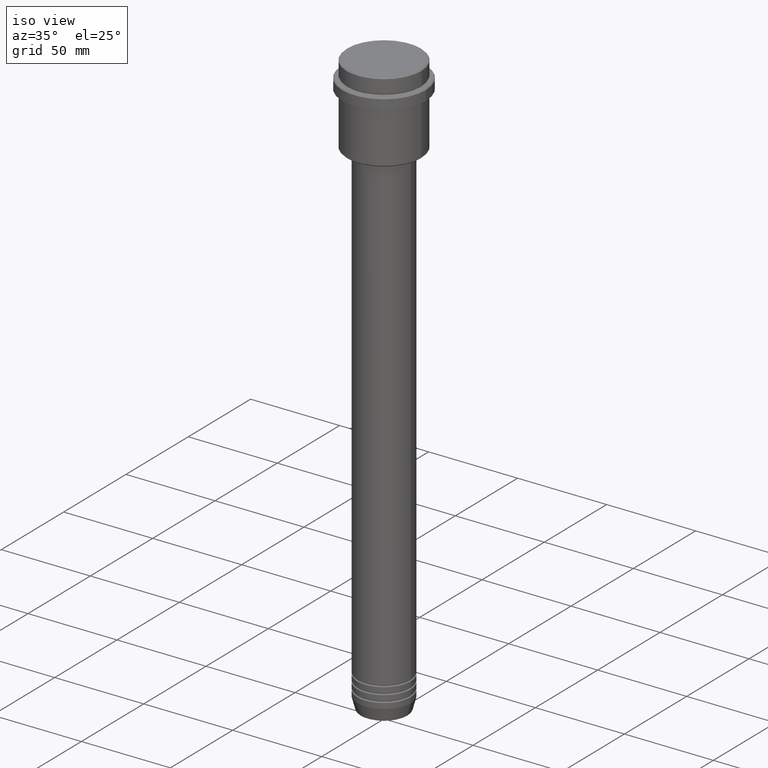
[diagram: clean part render]
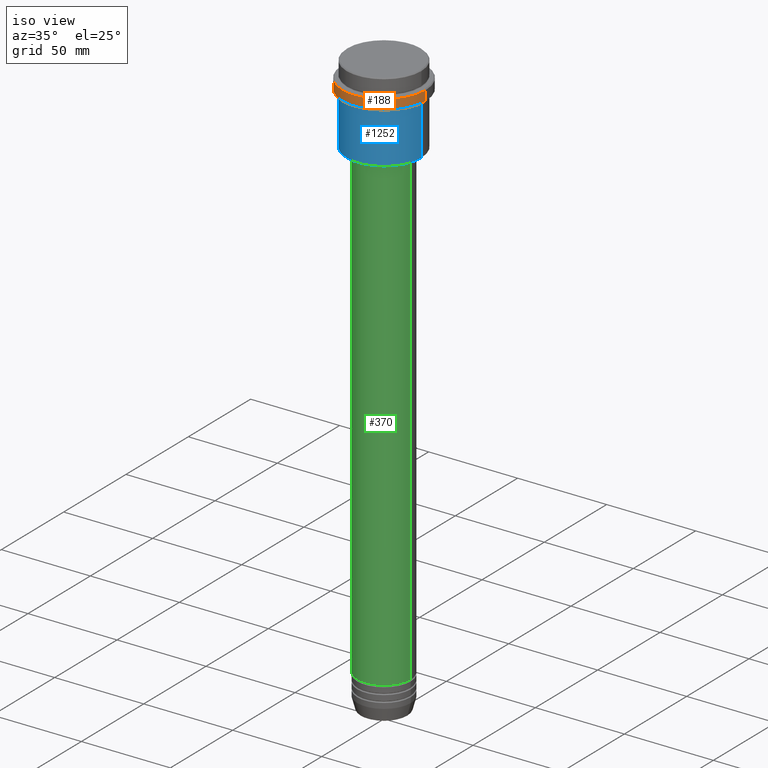
[diagram: same view with three faces highlighted in distinct colors, each labeled with its STEP entity id]
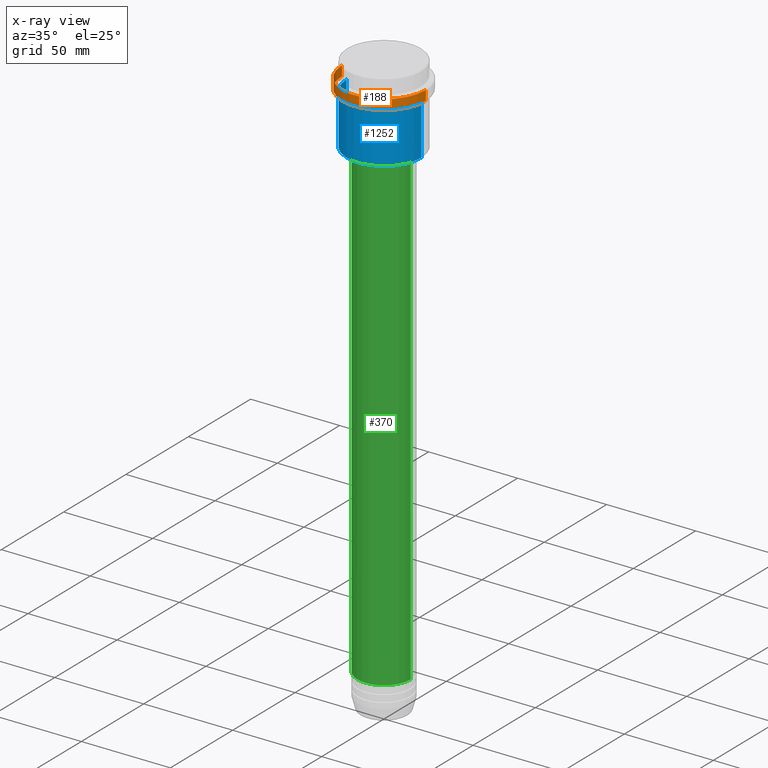
[diagram: x-ray of the same camera — body ghosted, the three highlighted faces saturated]
A machine part, iso view with three faces highlighted in distinct colors.
The next image is the same camera in x-ray (body ghosted, the three faces saturated) — at least one of them is partly hidden behind the body in this view.
Their STEP definitions:

[orange] entity #188 — the highlighted cylindrical surface (partial cylindrical patch) has radius 23.5 mm, axis along (-0, -0, 1).
#115 = CARTESIAN_POINT ( 'NONE',  ( 0.000000000000000000, 0.000000000000000000, -9.500000000000000000 ) ) ;
#143 = ORIENTED_EDGE ( 'NONE', *, *, #357, .F. ) ;
#164 = CARTESIAN_POINT ( 'NONE',  ( 0.000000000000000000, 0.000000000000000000, -15.00000000000000000 ) ) ;
#188 = ADVANCED_FACE ( 'NONE', ( #670 ), #1412, .T. ) ;
#223 = DIRECTION ( 'NONE',  ( -0.000000000000000000, -0.000000000000000000, 1.000000000000000000 ) ) ;
#277 = CARTESIAN_POINT ( 'NONE',  ( -23.50000000000000000, 2.877919977996280320E-15, 0.000000000000000000 ) ) ;
#283 = AXIS2_PLACEMENT_3D ( 'NONE', #868, #223, #320 ) ;
#320 = DIRECTION ( 'NONE',  ( 1.000000000000000000, 0.000000000000000000, 0.000000000000000000 ) ) ;
#337 = DIRECTION ( 'NONE',  ( 1.000000000000000000, 0.000000000000000000, 0.000000000000000000 ) ) ;
#355 = CARTESIAN_POINT ( 'NONE',  ( 23.50000000000000000, 0.000000000000000000, -9.500000000000000000 ) ) ;
#357 = EDGE_CURVE ( 'NONE', #1160, #466, #682, .T. ) ;
#396 = DIRECTION ( 'NONE',  ( 1.000000000000000000, 0.000000000000000000, 0.000000000000000000 ) ) ;
#466 = VERTEX_POINT ( 'NONE', #753 ) ;
#487 = DIRECTION ( 'NONE',  ( -0.000000000000000000, -0.000000000000000000, 1.000000000000000000 ) ) ;
#526 = VERTEX_POINT ( 'NONE', #1052 ) ;
#554 = AXIS2_PLACEMENT_3D ( 'NONE', #164, #948, #396 ) ;
#670 = FACE_OUTER_BOUND ( 'NONE', #974, .T. ) ;
#682 = LINE ( 'NONE', #277, #1067 ) ;
#753 = CARTESIAN_POINT ( 'NONE',  ( -23.50000000000000000, 2.877919977996280320E-15, -9.500000000000000000 ) ) ;
#770 = LINE ( 'NONE', #1107, #1356 ) ;
#777 = ORIENTED_EDGE ( 'NONE', *, *, #826, .T. ) ;
#802 = CARTESIAN_POINT ( 'NONE',  ( -23.50000000000000711, 2.877919977996281109E-15, -15.00000000000000000 ) ) ;
#820 = EDGE_CURVE ( 'NONE', #1143, #466, #1265, .T. ) ;
#826 = EDGE_CURVE ( 'NONE', #526, #1143, #770, .T. ) ;
#868 = CARTESIAN_POINT ( 'NONE',  ( 0.000000000000000000, 0.000000000000000000, 0.000000000000000000 ) ) ;
#900 = DIRECTION ( 'NONE',  ( 0.000000000000000000, 0.000000000000000000, -1.000000000000000000 ) ) ;
#936 = CIRCLE ( 'NONE', #554, 23.50000000000000355 ) ;
#948 = DIRECTION ( 'NONE',  ( -0.000000000000000000, -0.000000000000000000, 1.000000000000000000 ) ) ;
#954 = AXIS2_PLACEMENT_3D ( 'NONE', #115, #900, #337 ) ;
#974 = EDGE_LOOP ( 'NONE', ( #143, #1283, #777, #1248 ) ) ;
#986 = DIRECTION ( 'NONE',  ( -0.000000000000000000, -0.000000000000000000, 1.000000000000000000 ) ) ;
#1052 = CARTESIAN_POINT ( 'NONE',  ( 23.50000000000000355, 0.000000000000000000, -15.00000000000000000 ) ) ;
#1067 = VECTOR ( 'NONE', #487, 1000.000000000000000 ) ;
#1107 = CARTESIAN_POINT ( 'NONE',  ( 23.50000000000000000, 0.000000000000000000, 0.000000000000000000 ) ) ;
#1143 = VERTEX_POINT ( 'NONE', #355 ) ;
#1160 = VERTEX_POINT ( 'NONE', #802 ) ;
#1208 = EDGE_CURVE ( 'NONE', #1160, #526, #936, .T. ) ;
#1248 = ORIENTED_EDGE ( 'NONE', *, *, #820, .T. ) ;
#1265 = CIRCLE ( 'NONE', #954, 23.50000000000000000 ) ;
#1283 = ORIENTED_EDGE ( 'NONE', *, *, #1208, .T. ) ;
#1356 = VECTOR ( 'NONE', #986, 1000.000000000000000 ) ;
#1412 = CYLINDRICAL_SURFACE ( 'NONE', #283, 23.50000000000000000 ) ;

[blue] entity #1252 — the highlighted cylindrical surface (partial cylindrical patch) has radius 21 mm, axis along (-0, -0, 1).
#37 = VERTEX_POINT ( 'NONE', #1254 ) ;
#42 = LINE ( 'NONE', #1152, #812 ) ;
#50 = VERTEX_POINT ( 'NONE', #67 ) ;
#57 = CIRCLE ( 'NONE', #1400, 21.00000000000000000 ) ;
#67 = CARTESIAN_POINT ( 'NONE',  ( -21.00000000000000000, 2.571758278209441661E-15, -44.50000000000001421 ) ) ;
#96 = ORIENTED_EDGE ( 'NONE', *, *, #197, .F. ) ;
#106 = AXIS2_PLACEMENT_3D ( 'NONE', #920, #139, #268 ) ;
#139 = DIRECTION ( 'NONE',  ( -0.000000000000000000, -0.000000000000000000, 1.000000000000000000 ) ) ;
#170 = ORIENTED_EDGE ( 'NONE', *, *, #939, .F. ) ;
#184 = VERTEX_POINT ( 'NONE', #641 ) ;
#197 = EDGE_CURVE ( 'NONE', #50, #37, #1195, .T. ) ;
#239 = CIRCLE ( 'NONE', #106, 21.00000000000000000 ) ;
#268 = DIRECTION ( 'NONE',  ( -1.000000000000000000, 0.000000000000000000, 0.000000000000000000 ) ) ;
#287 = DIRECTION ( 'NONE',  ( 1.000000000000000000, 0.000000000000000000, 0.000000000000000000 ) ) ;
#313 = VERTEX_POINT ( 'NONE', #798 ) ;
#366 = ORIENTED_EDGE ( 'NONE', *, *, #1085, .T. ) ;
#372 = CARTESIAN_POINT ( 'NONE',  ( 0.000000000000000000, 0.000000000000000000, -16.00000000000000355 ) ) ;
#470 = DIRECTION ( 'NONE',  ( -0.000000000000000000, -0.000000000000000000, 1.000000000000000000 ) ) ;
#512 = DIRECTION ( 'NONE',  ( 1.000000000000000000, 0.000000000000000000, 0.000000000000000000 ) ) ;
#534 = AXIS2_PLACEMENT_3D ( 'NONE', #1148, #840, #287 ) ;
#561 = CARTESIAN_POINT ( 'NONE',  ( -21.00000000000000000, 2.571758278209441661E-15, 0.000000000000000000 ) ) ;
#641 = CARTESIAN_POINT ( 'NONE',  ( 21.00000000000000000, 0.000000000000000000, -16.00000000000000355 ) ) ;
#798 = CARTESIAN_POINT ( 'NONE',  ( 21.00000000000000000, 0.000000000000000000, -44.50000000000001421 ) ) ;
#812 = VECTOR ( 'NONE', #470, 1000.000000000000000 ) ;
#823 = EDGE_LOOP ( 'NONE', ( #96, #366, #984, #170 ) ) ;
#840 = DIRECTION ( 'NONE',  ( -0.000000000000000000, -0.000000000000000000, 1.000000000000000000 ) ) ;
#901 = VECTOR ( 'NONE', #1206, 1000.000000000000000 ) ;
#920 = CARTESIAN_POINT ( 'NONE',  ( 0.000000000000000000, 0.000000000000000000, -44.50000000000001421 ) ) ;
#939 = EDGE_CURVE ( 'NONE', #37, #184, #57, .T. ) ;
#972 = EDGE_CURVE ( 'NONE', #313, #184, #42, .T. ) ;
#984 = ORIENTED_EDGE ( 'NONE', *, *, #972, .T. ) ;
#1042 = DIRECTION ( 'NONE',  ( -0.000000000000000000, -0.000000000000000000, 1.000000000000000000 ) ) ;
#1051 = FACE_OUTER_BOUND ( 'NONE', #823, .T. ) ;
#1085 = EDGE_CURVE ( 'NONE', #50, #313, #239, .T. ) ;
#1148 = CARTESIAN_POINT ( 'NONE',  ( 0.000000000000000000, 0.000000000000000000, 0.000000000000000000 ) ) ;
#1152 = CARTESIAN_POINT ( 'NONE',  ( 21.00000000000000000, 0.000000000000000000, 0.000000000000000000 ) ) ;
#1195 = LINE ( 'NONE', #561, #901 ) ;
#1206 = DIRECTION ( 'NONE',  ( -0.000000000000000000, -0.000000000000000000, 1.000000000000000000 ) ) ;
#1252 = ADVANCED_FACE ( 'NONE', ( #1051 ), #1370, .T. ) ;
#1254 = CARTESIAN_POINT ( 'NONE',  ( -21.00000000000000000, 2.571758278209441661E-15, -16.00000000000000355 ) ) ;
#1370 = CYLINDRICAL_SURFACE ( 'NONE', #534, 21.00000000000000000 ) ;
#1400 = AXIS2_PLACEMENT_3D ( 'NONE', #372, #1042, #512 ) ;

[green] entity #370 — the highlighted cylindrical surface (edge-blend (fillet) strip) has radius 15 mm, axis along (-0, -0, 1).
#3 = AXIS2_PLACEMENT_3D ( 'NONE', #24, #451, #906 ) ;
#24 = CARTESIAN_POINT ( 'NONE',  ( 0.000000000000000000, 0.000000000000000000, 0.000000000000000000 ) ) ;
#39 = CARTESIAN_POINT ( 'NONE',  ( -15.00000000000000000, 1.836970198721029589E-15, -46.00000000000001421 ) ) ;
#46 = VERTEX_POINT ( 'NONE', #1368 ) ;
#62 = CARTESIAN_POINT ( 'NONE',  ( 0.000000000000000000, 0.000000000000000000, -46.00000000000001421 ) ) ;
#66 = EDGE_CURVE ( 'NONE', #280, #46, #1060, .T. ) ;
#86 = EDGE_CURVE ( 'NONE', #642, #280, #1396, .T. ) ;
#135 = FACE_OUTER_BOUND ( 'NONE', #964, .T. ) ;
#280 = VERTEX_POINT ( 'NONE', #574 ) ;
#311 = DIRECTION ( 'NONE',  ( 1.000000000000000000, 0.000000000000000000, 0.000000000000000000 ) ) ;
#329 = VECTOR ( 'NONE', #1035, 1000.000000000000000 ) ;
#362 = AXIS2_PLACEMENT_3D ( 'NONE', #62, #1364, #736 ) ;
#370 = ADVANCED_FACE ( 'NONE', ( #135 ), #1014, .T. ) ;
#399 = DIRECTION ( 'NONE',  ( -0.000000000000000000, -0.000000000000000000, 1.000000000000000000 ) ) ;
#412 = EDGE_CURVE ( 'NONE', #1167, #46, #997, .T. ) ;
#451 = DIRECTION ( 'NONE',  ( -0.000000000000000000, -0.000000000000000000, 1.000000000000000000 ) ) ;
#481 = ORIENTED_EDGE ( 'NONE', *, *, #412, .F. ) ;
#574 = CARTESIAN_POINT ( 'NONE',  ( 15.00000000000000000, 0.000000000000000000, -310.9999999999998863 ) ) ;
#595 = CARTESIAN_POINT ( 'NONE',  ( -15.00000000000000000, 1.836970198721029589E-15, 0.000000000000000000 ) ) ;
#642 = VERTEX_POINT ( 'NONE', #1325 ) ;
#734 = ORIENTED_EDGE ( 'NONE', *, *, #86, .T. ) ;
#736 = DIRECTION ( 'NONE',  ( 1.000000000000000000, 0.000000000000000000, 0.000000000000000000 ) ) ;
#744 = CARTESIAN_POINT ( 'NONE',  ( 15.00000000000000000, 0.000000000000000000, 0.000000000000000000 ) ) ;
#786 = AXIS2_PLACEMENT_3D ( 'NONE', #834, #1290, #311 ) ;
#834 = CARTESIAN_POINT ( 'NONE',  ( 0.000000000000000000, 0.000000000000000000, -310.9999999999998863 ) ) ;
#844 = ORIENTED_EDGE ( 'NONE', *, *, #66, .T. ) ;
#849 = LINE ( 'NONE', #595, #329 ) ;
#906 = DIRECTION ( 'NONE',  ( 1.000000000000000000, 0.000000000000000000, 0.000000000000000000 ) ) ;
#929 = VECTOR ( 'NONE', #399, 1000.000000000000000 ) ;
#953 = EDGE_CURVE ( 'NONE', #642, #1167, #849, .T. ) ;
#964 = EDGE_LOOP ( 'NONE', ( #1385, #734, #844, #481 ) ) ;
#997 = CIRCLE ( 'NONE', #362, 15.00000000000000000 ) ;
#1014 = CYLINDRICAL_SURFACE ( 'NONE', #3, 15.00000000000000000 ) ;
#1035 = DIRECTION ( 'NONE',  ( -0.000000000000000000, -0.000000000000000000, 1.000000000000000000 ) ) ;
#1060 = LINE ( 'NONE', #744, #929 ) ;
#1167 = VERTEX_POINT ( 'NONE', #39 ) ;
#1290 = DIRECTION ( 'NONE',  ( -0.000000000000000000, -0.000000000000000000, 1.000000000000000000 ) ) ;
#1325 = CARTESIAN_POINT ( 'NONE',  ( -15.00000000000000000, 1.836970198721029589E-15, -310.9999999999998863 ) ) ;
#1364 = DIRECTION ( 'NONE',  ( -0.000000000000000000, -0.000000000000000000, 1.000000000000000000 ) ) ;
#1368 = CARTESIAN_POINT ( 'NONE',  ( 15.00000000000000000, 0.000000000000000000, -46.00000000000001421 ) ) ;
#1385 = ORIENTED_EDGE ( 'NONE', *, *, #953, .F. ) ;
#1396 = CIRCLE ( 'NONE', #786, 15.00000000000000000 ) ;